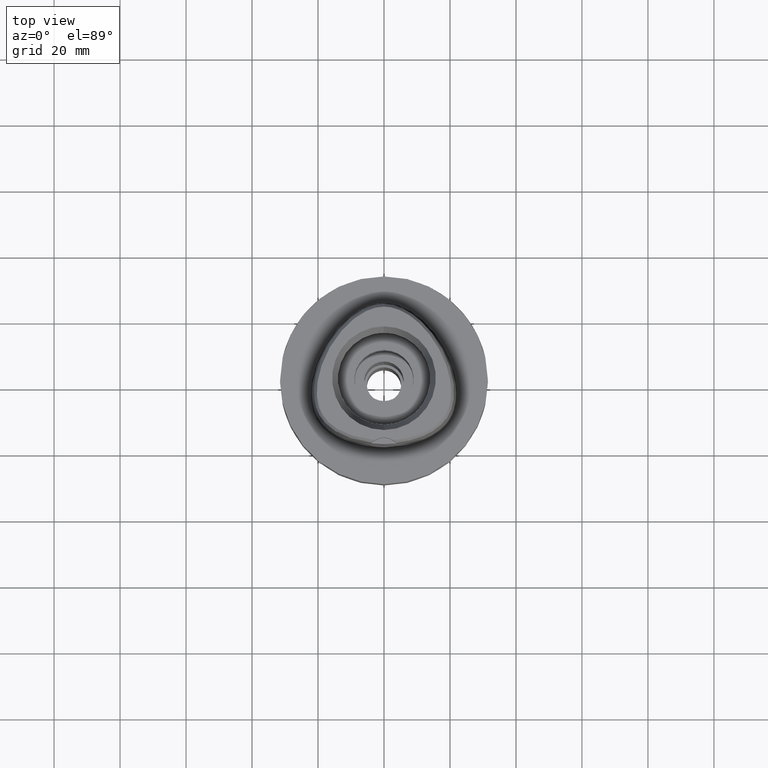
[diagram: clean part render]
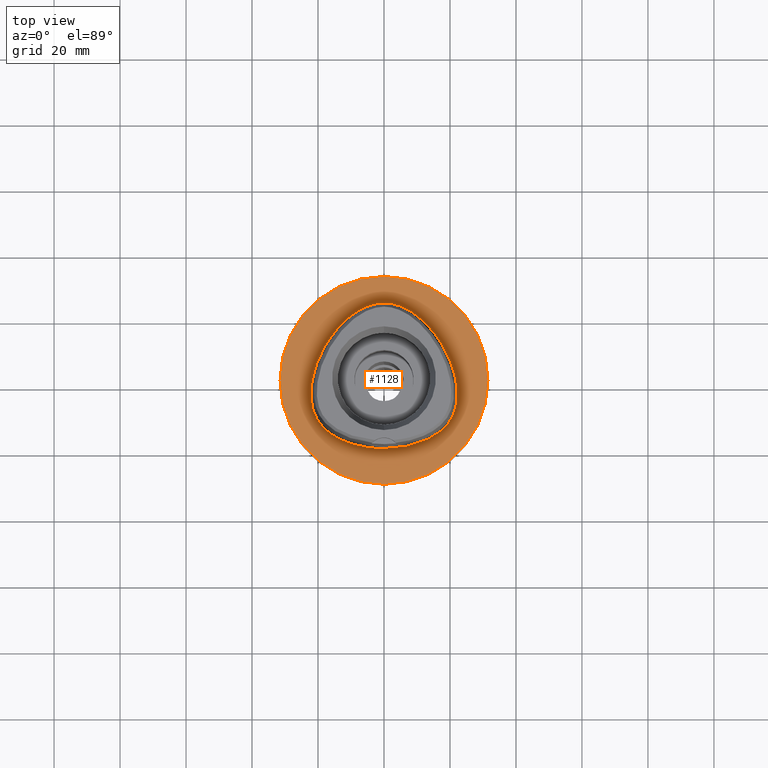
[diagram: same view with one face highlighted and labeled with its STEP entity id]
A machine part, top view. The second image highlights one B-rep face of the part: STEP entity #1128.
In plain terms, the highlighted planar face has unit normal (0, 0, -1).
Its self-contained STEP definition (entity closure, byte-faithful):
#18 = CARTESIAN_POINT ( 'NONE',  ( -2.113823674789727214, -20.67500002902034240, -1.161005397208461978E-06 ) ) ;
#268 = B_SPLINE_CURVE_WITH_KNOTS ( 'NONE', 3,
 ( #1548, #3101, #1181, #4647, #2724, #3332, #3230, #4497, #3310, #1376, #4467, #2878, #2142, #1302, #1762, #1354, #4773, #914, #4417, #4013, #993, #4846, #1405 ),
 .UNSPECIFIED., .F., .F.,
 ( 4, 1, 1, 1, 1, 1, 1, 1, 1, 1, 1, 1, 1, 1, 1, 1, 1, 1, 1, 1, 4 ),
 ( 0.0000000000000000000, 0.08333333333337000770, 0.1666666666667000196, 0.2083333333333000081, 0.2500000000000000000, 0.2916666666666999919, 0.3124999999998999689, 0.3333333333332000326, 0.3541666666666000163, 0.3749999999998999689, 0.4166666666666000163, 0.4583333333332000326, 0.4999999999998999689, 0.5833333333331000015, 0.6666666666664999852, 0.7499999999998000488, 0.8333333333329999704, 0.8749999999997000177, 0.9166666666664000651, 0.9583333333329999704, 1.000000000000000000 ),
 .UNSPECIFIED. ) ;
#391 = CARTESIAN_POINT ( 'NONE',  ( -22.05732877207013942, -6.847636722896392136, -1.161005397208461978E-06 ) ) ;
#407 = CARTESIAN_POINT ( 'NONE',  ( 0.0000000000000000000, -31.50000000000000000, 0.0000000000000000000 ) ) ;
#432 = ORIENTED_EDGE ( 'NONE', *, *, #2988, .F. ) ;
#490 = EDGE_CURVE ( 'NONE', #1791, #3619, #1394, .T. ) ;
#683 = FACE_BOUND ( 'NONE', #4598, .T. ) ;
#704 = CARTESIAN_POINT ( 'NONE',  ( -10.74572892936134849, 19.17433595985205130, -1.161005397208461978E-06 ) ) ;
#748 = CIRCLE ( 'NONE', #1811, 31.50000000000000000 ) ;
#914 = CARTESIAN_POINT ( 'NONE',  ( 10.74572891059365887, 19.17433593750019583, 1.067939139898221867E-14 ) ) ;
#993 = CARTESIAN_POINT ( 'NONE',  ( 2.564517726975692469, 23.29328124999285521, 1.067939139898221867E-14 ) ) ;
#1094 = AXIS2_PLACEMENT_3D ( 'NONE', #4624, #3440, #1509 ) ;
#1128 = ADVANCED_FACE ( 'NONE', ( #5004, #683 ), #3364, .F. ) ;
#1181 = CARTESIAN_POINT ( 'NONE',  ( 6.341471019211104121, -20.29812500000153364, 1.067939139898222025E-14 ) ) ;
#1225 = CARTESIAN_POINT ( 'NONE',  ( -14.67337965860573945, -17.21410158779837474, -1.161005397208461978E-06 ) ) ;
#1302 = CARTESIAN_POINT ( 'NONE',  ( 21.97832647786519900, -0.2810937499999956457, 1.067939139898221867E-14 ) ) ;
#1354 = CARTESIAN_POINT ( 'NONE',  ( 18.06826688526306057, 10.43171874999980453, 1.067939139898221867E-14 ) ) ;
#1376 = CARTESIAN_POINT ( 'NONE',  ( 20.93173252212210755, -10.60431640624805993, 1.067939139898221867E-14 ) ) ;
#1394 = B_SPLINE_CURVE_WITH_KNOTS ( 'NONE', 3,
 ( #4928, #1479, #3005, #2248, #4197, #704, #2270, #4983, #1508, #3805, #4599, #391, #1960, #4295, #2464, #4250, #1687, #3504, #1225, #2772, #5023, #18, #4000 ),
 .UNSPECIFIED., .F., .F.,
 ( 4, 1, 1, 1, 1, 1, 1, 1, 1, 1, 1, 1, 1, 1, 1, 1, 1, 1, 1, 1, 4 ),
 ( 0.0000000000000000000, 0.04166666666724999635, 0.08333333333387001052, 0.1250000000004999889, 0.1666666666672000086, 0.2500000000004000134, 0.3333333333335999904, 0.4166666666670000296, 0.5000000000001999512, 0.5416666666668999985, 0.5833333333333999837, 0.6250000000001000311, 0.6458333333333999837, 0.6666666666667000474, 0.6875000000000000000, 0.7083333333333000637, 0.7500000000000000000, 0.7916666666666000163, 0.8333333333332000326, 0.9166666666664999852, 1.000000000000000000 ),
 .UNSPECIFIED. ) ;
#1405 = CARTESIAN_POINT ( 'NONE',  ( 3.799139196167000631E-11, 23.47499999999000053, 6.964799107814998919E-14 ) ) ;
#1479 = CARTESIAN_POINT ( 'NONE',  ( -0.8548392443627499393, 23.47500002902194183, -1.161005397208461978E-06 ) ) ;
#1508 = CARTESIAN_POINT ( 'NONE',  ( -20.74942743625943464, 4.657187509896754563, -1.161005397208461978E-06 ) ) ;
#1509 = DIRECTION ( 'NONE',  ( 0.0000000000000000000, -1.000000000000000000, 0.0000000000000000000 ) ) ;
#1548 = CARTESIAN_POINT ( 'NONE',  ( -5.543970367641000270E-12, -20.67499999999999716, 7.257157837632998880E-14 ) ) ;
#1687 = CARTESIAN_POINT ( 'NONE',  ( -18.56841067257357736, -14.16937990283932791, -1.161005397208461978E-06 ) ) ;
#1698 = EDGE_LOOP ( 'NONE', ( #3682, #3119 ) ) ;
#1762 = CARTESIAN_POINT ( 'NONE',  ( 20.74942740880076286, 4.657187499999534630, 1.067939139898221867E-14 ) ) ;
#1791 = VERTEX_POINT ( 'NONE', #2031 ) ;
#1811 = AXIS2_PLACEMENT_3D ( 'NONE', #4039, #3336, #4419 ) ;
#1841 = ORIENTED_EDGE ( 'NONE', *, *, #490, .F. ) ;
#1960 = CARTESIAN_POINT ( 'NONE',  ( -21.55524828801393511, -8.996025398923361394, -1.161005397208461978E-06 ) ) ;
#2031 = CARTESIAN_POINT ( 'NONE',  ( 3.799139196167000631E-11, 23.47499999999000053, 6.964799107814998919E-14 ) ) ;
#2142 = CARTESIAN_POINT ( 'NONE',  ( 22.24453907855306767, -4.100468750000057838, 1.067939139898221867E-14 ) ) ;
#2244 = EDGE_CURVE ( 'NONE', #4378, #2826, #748, .T. ) ;
#2248 = CARTESIAN_POINT ( 'NONE',  ( -5.098437028117362324, 22.52602541768906264, -1.161005397208461978E-06 ) ) ;
#2270 = CARTESIAN_POINT ( 'NONE',  ( -14.40795641187923870, 15.64093751883009098, -1.161005397208461978E-06 ) ) ;
#2303 = EDGE_CURVE ( 'NONE', #2826, #4378, #4891, .T. ) ;
#2458 = AXIS2_PLACEMENT_3D ( 'NONE', #3687, #2573, #3659 ) ;
#2464 = CARTESIAN_POINT ( 'NONE',  ( -20.34961801075769472, -11.74885743640726865, -1.161005397208461978E-06 ) ) ;
#2573 = DIRECTION ( 'NONE',  ( 0.0000000000000000000, 0.0000000000000000000, -1.000000000000000000 ) ) ;
#2724 = CARTESIAN_POINT ( 'NONE',  ( 14.67337964419943042, -17.21410156249825008, 1.067939139898221867E-14 ) ) ;
#2754 = CARTESIAN_POINT ( 'NONE',  ( 0.0000000000000000000, 31.50000000000000000, 0.0000000000000000000 ) ) ;
#2772 = CARTESIAN_POINT ( 'NONE',  ( -11.23259757724475527, -18.89324221493039957, -1.161005397208461978E-06 ) ) ;
#2826 = VERTEX_POINT ( 'NONE', #2754 ) ;
#2878 = CARTESIAN_POINT ( 'NONE',  ( 22.05732874322326964, -6.847636718749383178, 1.067939139898221867E-14 ) ) ;
#2988 = EDGE_CURVE ( 'NONE', #3619, #1791, #268, .T. ) ;
#3005 = CARTESIAN_POINT ( 'NONE',  ( -2.564517732922850346, 23.29328127858133968, -1.161005397208461978E-06 ) ) ;
#3101 = CARTESIAN_POINT ( 'NONE',  ( 2.113823673067758868, -20.67499999999528271, 1.067939139898222183E-14 ) ) ;
#3119 = ORIENTED_EDGE ( 'NONE', *, *, #2244, .F. ) ;
#3230 = CARTESIAN_POINT ( 'NONE',  ( 18.56841065141961877, -14.16937988280652050, 1.067939139898221867E-14 ) ) ;
#3288 = CARTESIAN_POINT ( 'NONE',  ( -5.543970367641000270E-12, -20.67499999999999716, 7.257157837632998880E-14 ) ) ;
#3310 = CARTESIAN_POINT ( 'NONE',  ( 20.34961798556403423, -11.74885742187095516, 1.067939139898221867E-14 ) ) ;
#3332 = CARTESIAN_POINT ( 'NONE',  ( 16.95889172594077010, -15.67838867187498764, 1.067939139898221867E-14 ) ) ;
#3336 = DIRECTION ( 'NONE',  ( 0.0000000000000000000, 0.0000000000000000000, -1.000000000000000000 ) ) ;
#3364 = PLANE ( 'NONE',  #1094 ) ;
#3440 = DIRECTION ( 'NONE',  ( 0.0000000000000000000, 0.0000000000000000000, -1.000000000000000000 ) ) ;
#3504 = CARTESIAN_POINT ( 'NONE',  ( -16.95889174395656340, -15.67838869478339170, -1.161005397208461978E-06 ) ) ;
#3619 = VERTEX_POINT ( 'NONE', #3288 ) ;
#3659 = DIRECTION ( 'NONE',  ( 0.0000000000000000000, 1.000000000000000000, 0.0000000000000000000 ) ) ;
#3682 = ORIENTED_EDGE ( 'NONE', *, *, #2303, .F. ) ;
#3687 = CARTESIAN_POINT ( 'NONE',  ( 0.0000000000000000000, 1.319556926080999853E-14, 0.0000000000000000000 ) ) ;
#3805 = CARTESIAN_POINT ( 'NONE',  ( -21.97832650660647502, -0.2810937449221571627, -1.161005397208461978E-06 ) ) ;
#4000 = CARTESIAN_POINT ( 'NONE',  ( -5.543970367641000270E-12, -20.67499999999999716, 7.257157837632998880E-14 ) ) ;
#4013 = CARTESIAN_POINT ( 'NONE',  ( 5.098437017283710126, 22.52602539063096287, 1.067939139898221867E-14 ) ) ;
#4039 = CARTESIAN_POINT ( 'NONE',  ( 0.0000000000000000000, 1.319556926080999853E-14, 0.0000000000000000000 ) ) ;
#4197 = CARTESIAN_POINT ( 'NONE',  ( -7.571159449056287016, 21.31457033762470132, -1.161005397208461978E-06 ) ) ;
#4250 = CARTESIAN_POINT ( 'NONE',  ( -19.64947368215387868, -12.82525392334136782, -1.161005397208461978E-06 ) ) ;
#4295 = CARTESIAN_POINT ( 'NONE',  ( -20.93173254867920718, -10.60431641807733705, -1.161005397208461978E-06 ) ) ;
#4378 = VERTEX_POINT ( 'NONE', #407 ) ;
#4417 = CARTESIAN_POINT ( 'NONE',  ( 7.571159434350958506, 21.31457031249613365, 1.067939139898221867E-14 ) ) ;
#4419 = DIRECTION ( 'NONE',  ( 0.0000000000000000000, -1.000000000000000000, 0.0000000000000000000 ) ) ;
#4467 = CARTESIAN_POINT ( 'NONE',  ( 21.55524826009633799, -8.996025390625190354, 1.067939139898221867E-14 ) ) ;
#4497 = CARTESIAN_POINT ( 'NONE',  ( 19.64947365863921291, -12.82525390625423611, 1.067939139898221867E-14 ) ) ;
#4598 = EDGE_LOOP ( 'NONE', ( #1841, #432 ) ) ;
#4599 = CARTESIAN_POINT ( 'NONE',  ( -22.24453910766052900, -4.100468749829068393, -1.161005397208461978E-06 ) ) ;
#4624 = CARTESIAN_POINT ( 'NONE',  ( 0.0000000000000000000, 1.224646799146999965E-14, 0.0000000000000000000 ) ) ;
#4647 = CARTESIAN_POINT ( 'NONE',  ( 11.23259756728000802, -18.89324218749498741, 1.067939139898221867E-14 ) ) ;
#4773 = CARTESIAN_POINT ( 'NONE',  ( 14.40795638958614688, 15.64093750000615479, 1.067939139898221867E-14 ) ) ;
#4846 = CARTESIAN_POINT ( 'NONE',  ( 0.8548392423473892832, 23.47500000000204068, 1.067939139898221867E-14 ) ) ;
#4891 = CIRCLE ( 'NONE', #2458, 31.50000000000000000 ) ;
#4928 = CARTESIAN_POINT ( 'NONE',  ( 3.799139196167000631E-11, 23.47499999999000053, 6.964799107814998919E-14 ) ) ;
#4983 = CARTESIAN_POINT ( 'NONE',  ( -18.06826691053601763, 10.43171876459167358, -1.161005397208461978E-06 ) ) ;
#5004 = FACE_OUTER_BOUND ( 'NONE', #1698, .T. ) ;
#5023 = CARTESIAN_POINT ( 'NONE',  ( -6.341471024368531495, -20.29812502873328128, -1.161005397208461978E-06 ) ) ;